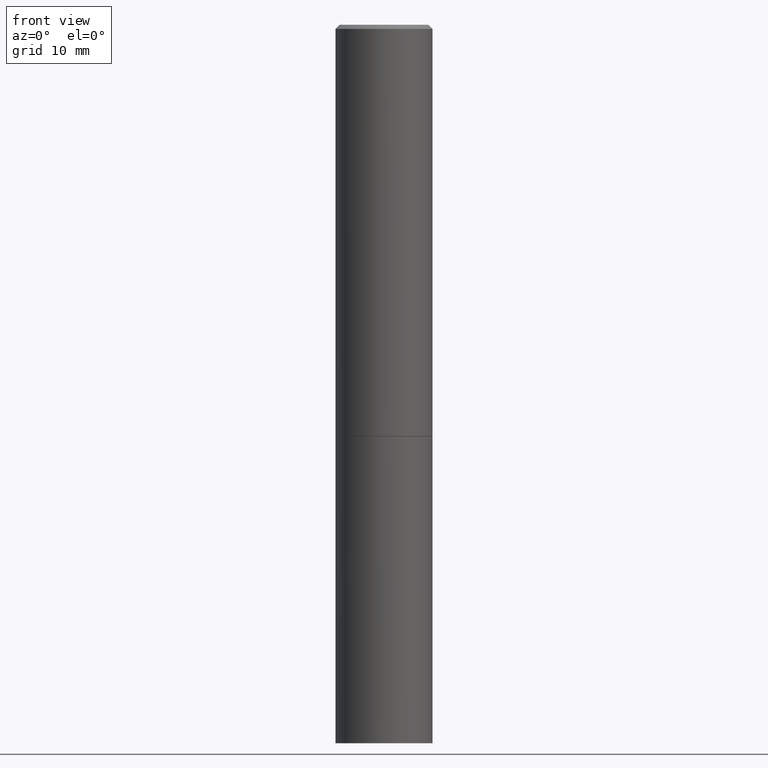
[diagram: clean part render]
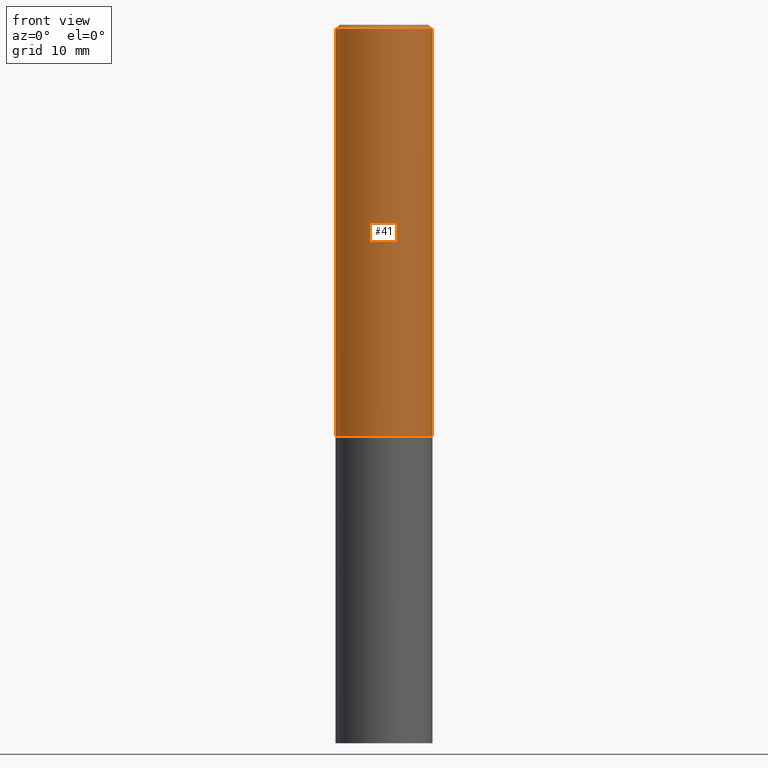
[diagram: same view with one face highlighted and labeled with its STEP entity id]
A machine part, front view. The second image highlights one B-rep face of the part: STEP entity #41.
In plain terms, the highlighted cylindrical surface (partial cylindrical patch) has radius 5.9995 mm, axis along (-0, 0, 1).
Its self-contained STEP definition (entity closure, byte-faithful):
#10 = CARTESIAN_POINT ( 'NONE',  ( -0.2361999999999998545, 1.678301941865355605E-15, -1.161852468318208056E-29 ) ) ;
#13 = DIRECTION ( 'NONE',  ( -2.445468806185136877E-29, 3.491481338843145188E-15, 1.000000000000000000 ) ) ;
#14 = CARTESIAN_POINT ( 'NONE',  ( 0.2361999999999997157, -1.690279253850496996E-15, -0.02000000000000003164 ) ) ;
#16 = EDGE_CURVE ( 'NONE', #231, #87, #181, .T. ) ;
#41 = ADVANCED_FACE ( 'NONE', ( #351 ), #239, .T. ) ;
#45 = EDGE_LOOP ( 'NONE', ( #342, #283, #141, #258 ) ) ;
#46 = VECTOR ( 'NONE', #326, 39.37007874015748143 ) ;
#64 = VERTEX_POINT ( 'NONE', #100 ) ;
#71 = CARTESIAN_POINT ( 'NONE',  ( 0.000000000000000000, 0.000000000000000000, 0.000000000000000000 ) ) ;
#73 = CARTESIAN_POINT ( 'NONE',  ( 4.890937612370280165E-31, -6.982962677686301470E-17, -0.02000000000000003164 ) ) ;
#79 = CARTESIAN_POINT ( 'NONE',  ( 4.907566800252331482E-29, -7.006704750790423614E-15, -2.006799999999999695 ) ) ;
#87 = VERTEX_POINT ( 'NONE', #14 ) ;
#91 = CIRCLE ( 'NONE', #282, 0.2361999999999999933 ) ;
#100 = CARTESIAN_POINT ( 'NONE',  ( -0.2361999999999997157, 1.579546157692631255E-15, -0.02000000000000003164 ) ) ;
#104 = DIRECTION ( 'NONE',  ( -2.445468806185136597E-29, 3.491481338843145583E-15, 1.000000000000000000 ) ) ;
#105 = EDGE_CURVE ( 'NONE', #116, #64, #303, .T. ) ;
#106 = DIRECTION ( 'NONE',  ( -2.445468806185136597E-29, 3.491481338843145583E-15, 1.000000000000000000 ) ) ;
#116 = VERTEX_POINT ( 'NONE', #294 ) ;
#125 = VECTOR ( 'NONE', #13, 39.37007874015748143 ) ;
#131 = AXIS2_PLACEMENT_3D ( 'NONE', #71, #236, #215 ) ;
#141 = ORIENTED_EDGE ( 'NONE', *, *, #16, .T. ) ;
#157 = CIRCLE ( 'NONE', #240, 0.2361999999999997157 ) ;
#181 = LINE ( 'NONE', #299, #46 ) ;
#215 = DIRECTION ( 'NONE',  ( 1.000000000000000000, -6.982962677686266711E-15, 4.876176775795935793E-29 ) ) ;
#219 = DIRECTION ( 'NONE',  ( 1.000000000000000000, -6.982962677686265133E-15, 0.000000000000000000 ) ) ;
#231 = VERTEX_POINT ( 'NONE', #360 ) ;
#236 = DIRECTION ( 'NONE',  ( -2.445468806185136597E-29, 3.491481338843145583E-15, 1.000000000000000000 ) ) ;
#239 = CYLINDRICAL_SURFACE ( 'NONE', #131, 0.2361999999999998545 ) ;
#240 = AXIS2_PLACEMENT_3D ( 'NONE', #73, #104, #306 ) ;
#258 = ORIENTED_EDGE ( 'NONE', *, *, #270, .F. ) ;
#270 = EDGE_CURVE ( 'NONE', #64, #87, #157, .T. ) ;
#282 = AXIS2_PLACEMENT_3D ( 'NONE', #79, #106, #219 ) ;
#283 = ORIENTED_EDGE ( 'NONE', *, *, #309, .T. ) ;
#294 = CARTESIAN_POINT ( 'NONE',  ( -0.2362000000000000210, -1.859965246918283512E-15, -2.006799999999999695 ) ) ;
#299 = CARTESIAN_POINT ( 'NONE',  ( 0.2361999999999998545, -1.649375784469495145E-15, 1.151752954442999387E-29 ) ) ;
#303 = LINE ( 'NONE', #10, #125 ) ;
#306 = DIRECTION ( 'NONE',  ( 1.000000000000000000, -6.982962677686266711E-15, 0.000000000000000000 ) ) ;
#309 = EDGE_CURVE ( 'NONE', #116, #231, #91, .T. ) ;
#326 = DIRECTION ( 'NONE',  ( -2.445468806185136877E-29, 3.491481338843145188E-15, 1.000000000000000000 ) ) ;
#342 = ORIENTED_EDGE ( 'NONE', *, *, #105, .F. ) ;
#351 = FACE_OUTER_BOUND ( 'NONE', #45, .T. ) ;
#360 = CARTESIAN_POINT ( 'NONE',  ( 0.2361999999999999933, -8.656080535259919350E-15, -2.006799999999999695 ) ) ;